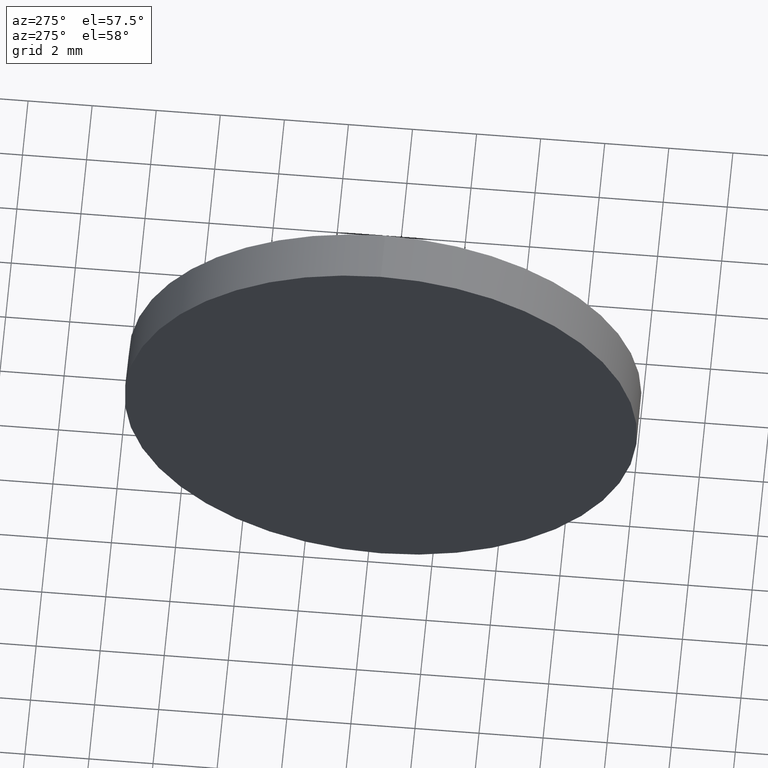
[diagram: clean part render]
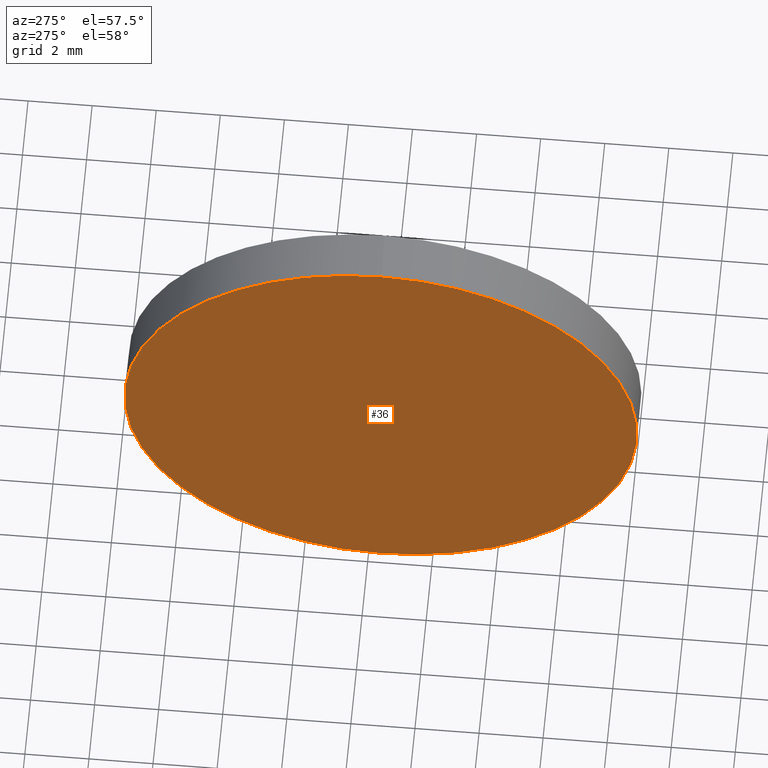
[diagram: same view with one face highlighted and labeled with its STEP entity id]
A machine part, auxiliary view. The second image highlights one B-rep face of the part: STEP entity #36.
In plain terms, the highlighted planar face has unit normal (1, 0, 0).
Its self-contained STEP definition (entity closure, byte-faithful):
#17 = DIRECTION ( 'NONE',  ( 0.0000000000000000000, 0.0000000000000000000, -1.000000000000000000 ) ) ;
#24 = CARTESIAN_POINT ( 'NONE',  ( 608.1243734842782900, 147.6021442105515000, 7.999999999999979600 ) ) ;
#32 = ORIENTED_EDGE ( 'NONE', *, *, #105, .T. ) ;
#36 = ADVANCED_FACE ( 'NONE', ( #126 ), #108, .F. ) ;
#40 = AXIS2_PLACEMENT_3D ( 'NONE', #67, #163, #17 ) ;
#41 = CARTESIAN_POINT ( 'NONE',  ( 608.1243734842782900, 147.6021442105515000, -7.999999999999979600 ) ) ;
#51 = CARTESIAN_POINT ( 'NONE',  ( 608.1243734842782900, 147.6021442105515000, 0.0000000000000000000 ) ) ;
#67 = CARTESIAN_POINT ( 'NONE',  ( 608.1243734842782900, 147.6021442105515000, 0.0000000000000000000 ) ) ;
#85 = DIRECTION ( 'NONE',  ( 0.0000000000000000000, 0.0000000000000000000, 1.000000000000000000 ) ) ;
#105 = EDGE_CURVE ( 'NONE', #152, #137, #183, .T. ) ;
#108 = PLANE ( 'NONE',  #40 ) ;
#112 = DIRECTION ( 'NONE',  ( -1.000000000000000000, -0.0000000000000000000, -0.0000000000000000000 ) ) ;
#114 = EDGE_LOOP ( 'NONE', ( #32, #132 ) ) ;
#122 = CARTESIAN_POINT ( 'NONE',  ( 608.1243734842782900, 147.6021442105515000, 0.0000000000000000000 ) ) ;
#124 = CIRCLE ( 'NONE', #164, 7.999999999999979600 ) ;
#126 = FACE_OUTER_BOUND ( 'NONE', #114, .T. ) ;
#127 = EDGE_CURVE ( 'NONE', #137, #152, #124, .T. ) ;
#132 = ORIENTED_EDGE ( 'NONE', *, *, #127, .T. ) ;
#137 = VERTEX_POINT ( 'NONE', #41 ) ;
#146 = DIRECTION ( 'NONE',  ( -1.000000000000000000, -0.0000000000000000000, -0.0000000000000000000 ) ) ;
#151 = AXIS2_PLACEMENT_3D ( 'NONE', #51, #146, #162 ) ;
#152 = VERTEX_POINT ( 'NONE', #24 ) ;
#162 = DIRECTION ( 'NONE',  ( 0.0000000000000000000, 0.0000000000000000000, 1.000000000000000000 ) ) ;
#163 = DIRECTION ( 'NONE',  ( 1.000000000000000000, 0.0000000000000000000, 0.0000000000000000000 ) ) ;
#164 = AXIS2_PLACEMENT_3D ( 'NONE', #122, #112, #85 ) ;
#183 = CIRCLE ( 'NONE', #151, 7.999999999999979600 ) ;